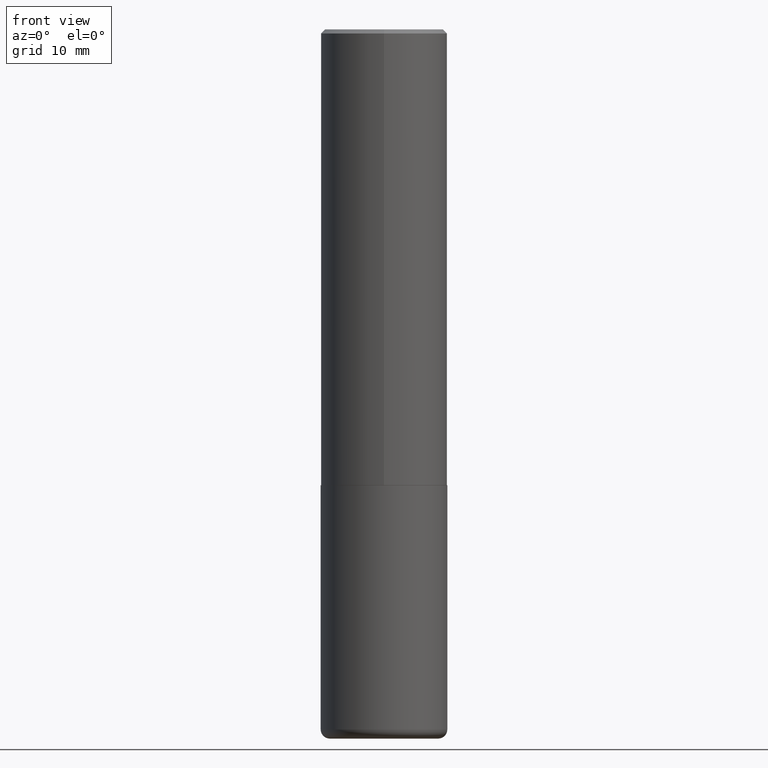
[diagram: clean part render]
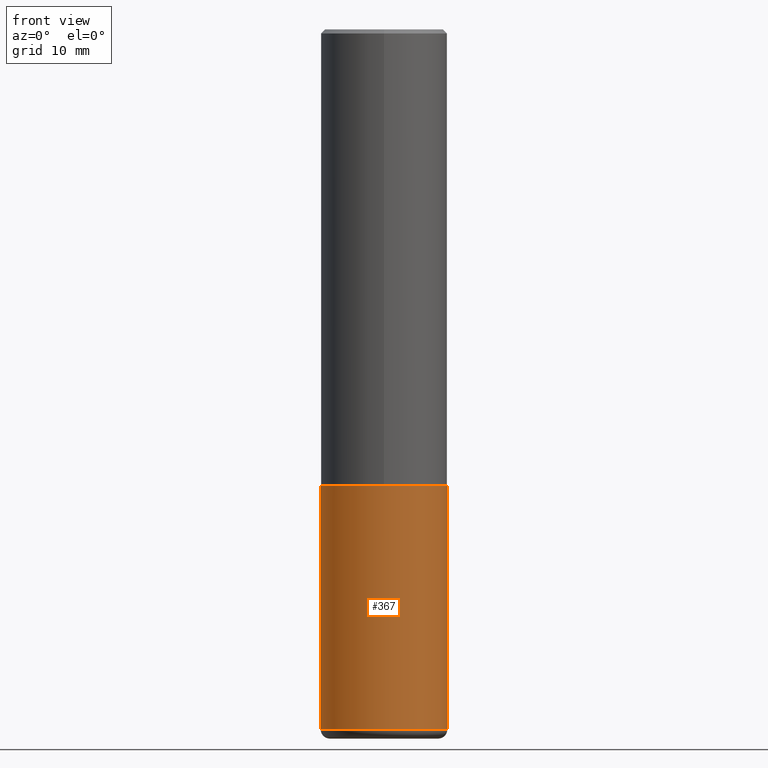
[diagram: same view with one face highlighted and labeled with its STEP entity id]
A machine part, front view. The second image highlights one B-rep face of the part: STEP entity #367.
In plain terms, the highlighted cylindrical surface (partial cylindrical patch) has radius 7.9375 mm, axis along (-0, 0, 1).
Its self-contained STEP definition (entity closure, byte-faithful):
#18 = VECTOR ( 'NONE', #236, 39.37007874015748143 ) ;
#23 = EDGE_CURVE ( 'NONE', #312, #274, #383, .T. ) ;
#25 = DIRECTION ( 'NONE',  ( 1.000000000000000000, -6.982962677686265133E-15, 0.000000000000000000 ) ) ;
#49 = EDGE_LOOP ( 'NONE', ( #313, #177, #184, #307 ) ) ;
#70 = CARTESIAN_POINT ( 'NONE',  ( 0.3125000000000000000, -1.003800884917403364E-14, -2.249999999999999556 ) ) ;
#73 = DIRECTION ( 'NONE',  ( -2.445468806185136597E-29, 3.491481338843145583E-15, 1.000000000000000000 ) ) ;
#93 = LINE ( 'NONE', #169, #18 ) ;
#94 = AXIS2_PLACEMENT_3D ( 'NONE', #228, #310, #25 ) ;
#98 = DIRECTION ( 'NONE',  ( -2.445468806185136597E-29, 3.491481338843145583E-15, 1.000000000000000000 ) ) ;
#102 = EDGE_CURVE ( 'NONE', #306, #274, #123, .T. ) ;
#119 = CIRCLE ( 'NONE', #129, 0.3125000000000000000 ) ;
#123 = LINE ( 'NONE', #261, #346 ) ;
#129 = AXIS2_PLACEMENT_3D ( 'NONE', #344, #98, #241 ) ;
#169 = CARTESIAN_POINT ( 'NONE',  ( -0.3125000000000000000, 2.220446049250313081E-15, -1.537167215704658232E-29 ) ) ;
#177 = ORIENTED_EDGE ( 'NONE', *, *, #418, .T. ) ;
#184 = ORIENTED_EDGE ( 'NONE', *, *, #102, .T. ) ;
#196 = DIRECTION ( 'NONE',  ( -2.445468806185136877E-29, 3.491481338843145188E-15, 1.000000000000000000 ) ) ;
#202 = CARTESIAN_POINT ( 'NONE',  ( -0.3125000000000000555, -9.842621976452751474E-15, -3.454999999999999627 ) ) ;
#222 = DIRECTION ( 'NONE',  ( 1.000000000000000000, -6.982962677686266711E-15, 4.876176775795936353E-29 ) ) ;
#228 = CARTESIAN_POINT ( 'NONE',  ( 5.502304813916556222E-29, -7.855833012397075293E-15, -2.249999999999999556 ) ) ;
#235 = AXIS2_PLACEMENT_3D ( 'NONE', #308, #73, #222 ) ;
#236 = DIRECTION ( 'NONE',  ( -2.445468806185136877E-29, 3.491481338843145188E-15, 1.000000000000000000 ) ) ;
#241 = DIRECTION ( 'NONE',  ( 1.000000000000000000, -6.982962677686269077E-15, 0.000000000000000000 ) ) ;
#253 = VERTEX_POINT ( 'NONE', #202 ) ;
#261 = CARTESIAN_POINT ( 'NONE',  ( 0.3125000000000000000, -2.182175836776958347E-15, 1.523805242436230075E-29 ) ) ;
#274 = VERTEX_POINT ( 'NONE', #70 ) ;
#276 = FACE_OUTER_BOUND ( 'NONE', #49, .T. ) ;
#299 = CARTESIAN_POINT ( 'NONE',  ( 0.3125000000000000555, -1.424524386248002448E-14, -3.454999999999999627 ) ) ;
#306 = VERTEX_POINT ( 'NONE', #299 ) ;
#307 = ORIENTED_EDGE ( 'NONE', *, *, #23, .F. ) ;
#308 = CARTESIAN_POINT ( 'NONE',  ( 0.000000000000000000, 0.000000000000000000, 0.000000000000000000 ) ) ;
#310 = DIRECTION ( 'NONE',  ( -2.445468806185136597E-29, 3.491481338843145583E-15, 1.000000000000000000 ) ) ;
#312 = VERTEX_POINT ( 'NONE', #363 ) ;
#313 = ORIENTED_EDGE ( 'NONE', *, *, #382, .F. ) ;
#344 = CARTESIAN_POINT ( 'NONE',  ( 8.449094725369646135E-29, -1.206306802570306613E-14, -3.454999999999999627 ) ) ;
#346 = VECTOR ( 'NONE', #196, 39.37007874015748143 ) ;
#363 = CARTESIAN_POINT ( 'NONE',  ( -0.3125000000000000000, -7.739004469799756843E-15, -2.249999999999999556 ) ) ;
#367 = ADVANCED_FACE ( 'NONE', ( #276 ), #372, .T. ) ;
#372 = CYLINDRICAL_SURFACE ( 'NONE', #235, 0.3125000000000000000 ) ;
#382 = EDGE_CURVE ( 'NONE', #253, #312, #93, .T. ) ;
#383 = CIRCLE ( 'NONE', #94, 0.3125000000000000000 ) ;
#418 = EDGE_CURVE ( 'NONE', #253, #306, #119, .T. ) ;